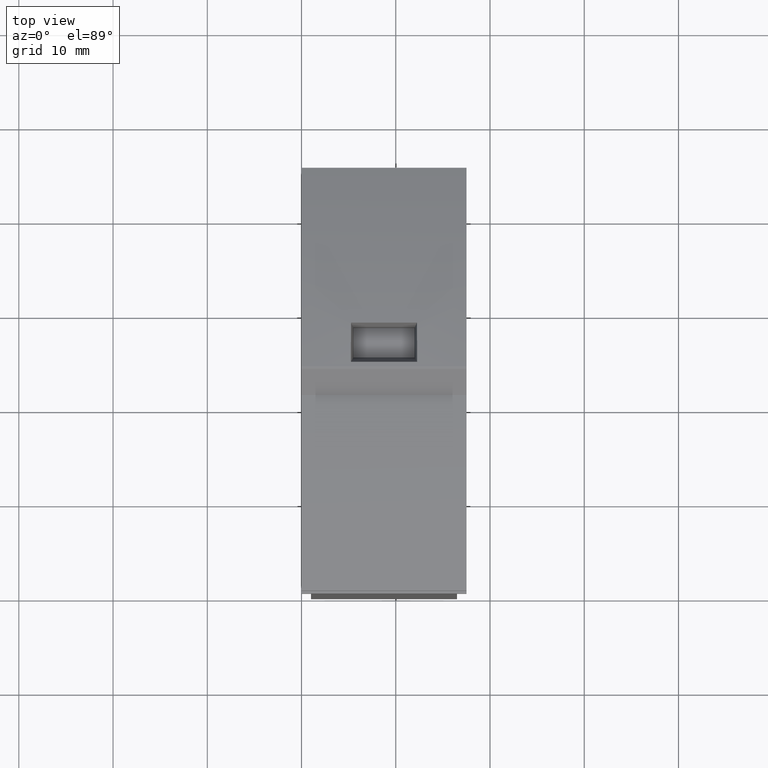
[diagram: clean part render]
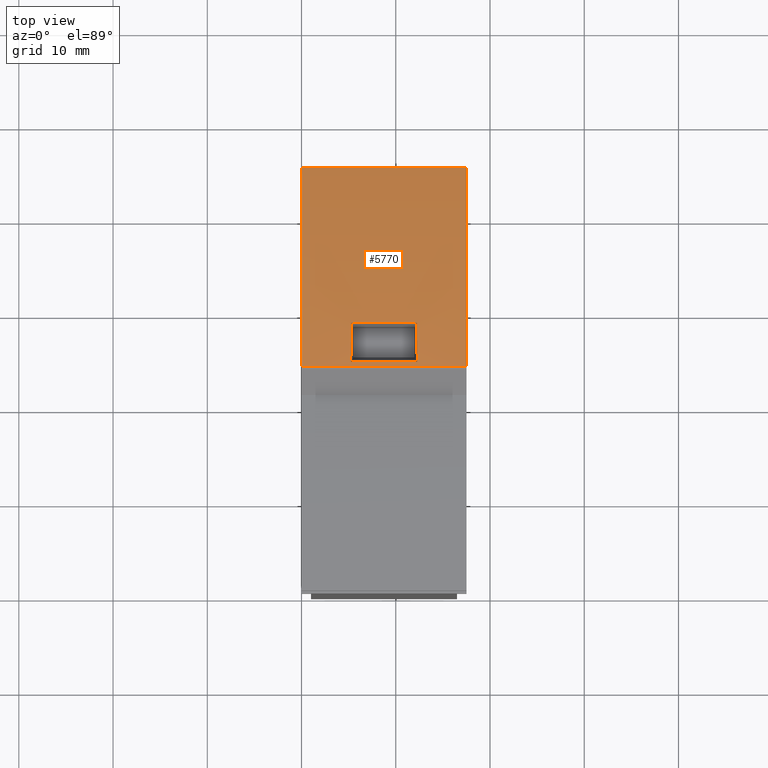
[diagram: same view with one face highlighted and labeled with its STEP entity id]
A machine part, top view. The second image highlights one B-rep face of the part: STEP entity #5770.
In plain terms, the highlighted cylindrical surface (partial cylindrical patch) has radius 71.8 mm, axis along (-1, -0, -0).
Its self-contained STEP definition (entity closure, byte-faithful):
#1390=CARTESIAN_POINT('',(7.79045116874598,62.8308698087791,
18.5305241959885));
#1400=VERTEX_POINT('',#1390);
#1430=CARTESIAN_POINT('',(-14.8475321068877,-5.30694431239836,
18.5305241959885));
#1440=DIRECTION('',(1.03086371928786E-20,-1.79919842279765E-23,-1.));
#1450=DIRECTION('',(-0.99999390765779,0.00349065141522352,
-1.03086371928783E-20));
#1460=AXIS2_PLACEMENT_3D('',#1430,#1440,#1450);
#1470=CIRCLE('',#1460,71.8);
#1480=CARTESIAN_POINT('',(-13.3065474502779,66.476517336425,
18.5305241959885));
#1490=VERTEX_POINT('',#1480);
#1500=EDGE_CURVE('',#1490,#1400,#1470,.T.);
#1980=CARTESIAN_POINT('',(-13.3065474502779,66.476517336425,
21.4305241959885));
#1990=DIRECTION('',(-1.03086371928786E-20,1.79919842279765E-23,1.));
#2000=VECTOR('',#1990,1.);
#2010=LINE('',#1980,#2000);
#2020=CARTESIAN_POINT('',(-13.3065474502779,66.476517336425,
36.0306384267959));
#2030=VERTEX_POINT('',#2020);
#2040=EDGE_CURVE('',#1490,#2030,#2010,.T.);
#3990=CARTESIAN_POINT('',(-14.8475321068877,-5.30694431239836,
36.0306384267959));
#4000=DIRECTION('',(1.03086371928786E-20,-1.79919842279765E-23,-1.));
#4010=DIRECTION('',(-0.99999390765779,0.00349065141522352,
-1.03086371928783E-20));
#4020=AXIS2_PLACEMENT_3D('',#3990,#4000,#4010);
#4030=CIRCLE('',#4020,71.8);
#4040=CARTESIAN_POINT('',(7.79045116874598,62.8308698087791,
36.0306384267959));
#4050=VERTEX_POINT('',#4040);
#4060=EDGE_CURVE('',#2030,#4050,#4030,.T.);
#5250=CARTESIAN_POINT('',(-14.8475321068877,-5.30694431239836,
21.4305241959885));
#5260=DIRECTION('',(1.03086371928786E-20,-1.79919842279765E-23,-1.));
#5270=DIRECTION('',(-0.99999390765779,0.00349065141522352,
-1.03086371928783E-20));
#5280=AXIS2_PLACEMENT_3D('',#5250,#5260,#5270);
#5290=CYLINDRICAL_SURFACE('',#5280,71.8);
#5300=CARTESIAN_POINT('',(-12.8666044511729,66.4657240622888,
21.4305241959885));
#5310=DIRECTION('',(1.03086371928786E-20,-1.79919842279765E-23,-1.));
#5320=VECTOR('',#5310,1.);
#5330=LINE('',#5300,#5320);
#5340=CARTESIAN_POINT('',(-12.8666044511729,66.4657240622888,
30.7984849560006));
#5350=VERTEX_POINT('',#5340);
#5360=CARTESIAN_POINT('',(-12.8666044511729,66.4657240622888,
23.763817895085));
#5370=VERTEX_POINT('',#5360);
#5380=EDGE_CURVE('',#5350,#5370,#5330,.T.);
#5390=ORIENTED_EDGE('',*,*,#5380,.T.);
#5400=CARTESIAN_POINT('',(-14.8475321068878,-5.30694431239837,
24.3706724932617));
#5410=DIRECTION('',(-0.000400686463919046,0.0892118964919584,
-0.996012588763147));
#5420=DIRECTION('',(0.0044734475178448,-0.996002542788908,
-0.0892127963093539));
#5430=AXIS2_PLACEMENT_3D('',#5400,#5410,#5420);
#5440=ELLIPSE('',#5430,72.0874422773728,71.8);
#5450=CARTESIAN_POINT('',(-8.70828885983052,66.2301068733576,
30.7757080982613));
#5460=VERTEX_POINT('',#5450);
#5470=EDGE_CURVE('',#5350,#5460,#5440,.T.);
#5480=ORIENTED_EDGE('',*,*,#5470,.F.);
#5490=CARTESIAN_POINT('',(-8.70828885983052,66.2301068733576,
21.4305241959885));
#5500=DIRECTION('',(1.03086371928786E-20,-1.79919842279765E-23,-1.));
#5510=VECTOR('',#5500,1.);
#5520=LINE('',#5490,#5510);
#5530=CARTESIAN_POINT('',(-8.7082888598305,66.2301068733575,
23.7861774799368));
#5540=VERTEX_POINT('',#5530);
#5550=EDGE_CURVE('',#5460,#5540,#5520,.T.);
#5560=ORIENTED_EDGE('',*,*,#5550,.F.);
#5570=CARTESIAN_POINT('',(-14.8475321068877,-5.30694431239837,
30.1895532994554));
#5580=DIRECTION('',(-0.000302527560772253,0.0891806171787416,
0.996015424577699));
#5590=DIRECTION('',(0.00337876539401615,-0.996009693698363,
0.0891811303096473));
#5600=AXIS2_PLACEMENT_3D('',#5570,#5580,#5590);
#5610=ELLIPSE('',#5600,72.0872370329431,71.8);
#5620=EDGE_CURVE('',#5540,#5370,#5610,.T.);
#5630=ORIENTED_EDGE('',*,*,#5620,.F.);
#5640=EDGE_LOOP('',(#5630,#5560,#5480,#5390));
#5650=FACE_BOUND('',#5640,.T.);
#5660=ORIENTED_EDGE('',*,*,#4060,.T.);
#5670=ORIENTED_EDGE('',*,*,#2040,.T.);
#5680=ORIENTED_EDGE('',*,*,#1500,.F.);
#5690=CARTESIAN_POINT('',(7.79045116874598,62.8308698087791,
21.4305241959885));
#5700=DIRECTION('',(1.03086371928786E-20,-1.79919842279765E-23,-1.));
#5710=VECTOR('',#5700,1.);
#5720=LINE('',#5690,#5710);
#5730=EDGE_CURVE('',#4050,#1400,#5720,.T.);
#5740=ORIENTED_EDGE('',*,*,#5730,.T.);
#5750=EDGE_LOOP('',(#5740,#5680,#5670,#5660));
#5760=FACE_OUTER_BOUND('',#5750,.T.);
#5770=ADVANCED_FACE('',(#5650,#5760),#5290,.T.);